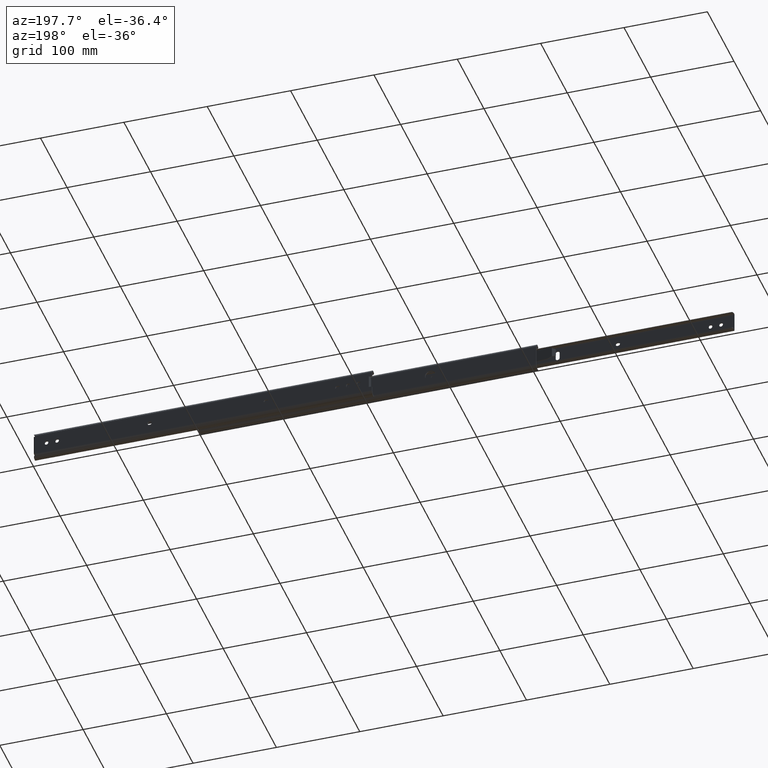
[diagram: clean part render]
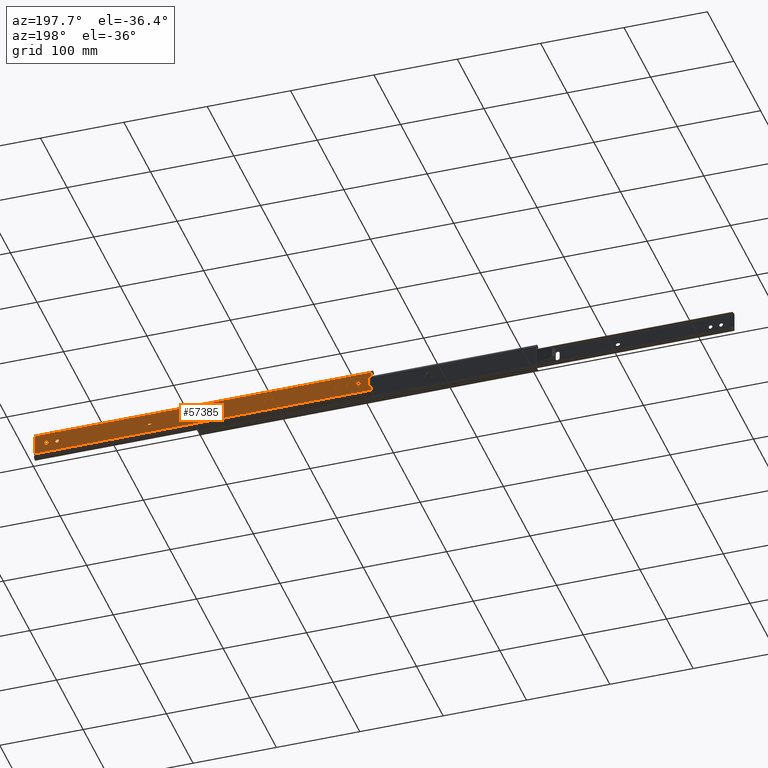
[diagram: same view with one face highlighted and labeled with its STEP entity id]
A machine part, auxiliary view. The second image highlights one B-rep face of the part: STEP entity #57385.
In plain terms, the highlighted face is a freeform B-spline surface patch.
Its self-contained STEP definition (entity closure, byte-faithful):
#54085=CARTESIAN_POINT('',(7.347638E-017,-0.399999999999978,387.850000000000020));
#54086=VERTEX_POINT('',#54085);
#54092=CARTESIAN_POINT('',(0.0,0.400000000000034,387.850000000000020));
#54093=VERTEX_POINT('',#54092);
#54094=CARTESIAN_POINT('',(7.347638E-017,-0.399999999999978,387.850000000000020));
#54095=CARTESIAN_POINT('',(0.0,0.400000000000034,387.850000000000020));
#54096=QUASI_UNIFORM_CURVE('',1,(#54094,#54095),.UNSPECIFIED.,.F.,.U.);
#54097=EDGE_CURVE('',#54086,#54093,#54096,.T.);
#54134=CARTESIAN_POINT('',(0.0,-0.399999999999977,392.350000000000020));
#54135=VERTEX_POINT('',#54134);
#54141=CARTESIAN_POINT('',(0.0,-0.399999999999977,392.350000000000020));
#54142=CARTESIAN_POINT('',(0.0,-2.649999999999978,392.350000000000020));
#54143=CARTESIAN_POINT('',(0.0,-2.649999999999977,390.100000000000020));
#54144=CARTESIAN_POINT('',(0.0,-2.649999999999978,387.850000000000080));
#54145=CARTESIAN_POINT('',(0.0,-0.399999999999977,387.850000000000020));
#54153=(BOUNDED_CURVE()B_SPLINE_CURVE(2,(#54141,#54142,#54143,#54144,#54145),.UNSPECIFIED.,.F.,.U.)B_SPLINE_CURVE_WITH_KNOTS((3,2,3),(0.0,0.500000000000000,1.0),.UNSPECIFIED.)CURVE()GEOMETRIC_REPRESENTATION_ITEM()RATIONAL_B_SPLINE_CURVE((1.0,0.707106781186547,1.0,0.707106781186547,1.0))REPRESENTATION_ITEM(''));
#54154=EDGE_CURVE('',#54135,#54086,#54153,.T.);
#54182=CARTESIAN_POINT('',(0.0,0.400000000000034,392.350000000000020));
#54183=VERTEX_POINT('',#54182);
#54189=CARTESIAN_POINT('',(0.0,0.400000000000034,392.350000000000020));
#54190=CARTESIAN_POINT('',(0.0,-0.399999999999977,392.350000000000020));
#54191=QUASI_UNIFORM_CURVE('',1,(#54189,#54190),.UNSPECIFIED.,.F.,.U.);
#54192=EDGE_CURVE('',#54183,#54135,#54191,.T.);
#54222=CARTESIAN_POINT('',(0.0,0.400000000000034,387.850000000000020));
#54223=CARTESIAN_POINT('',(0.0,2.650000000000034,387.850000000000080));
#54224=CARTESIAN_POINT('',(0.0,2.650000000000034,390.100000000000020));
#54225=CARTESIAN_POINT('',(0.0,2.650000000000034,392.350000000000020));
#54226=CARTESIAN_POINT('',(0.0,0.400000000000034,392.350000000000020));
#54234=(BOUNDED_CURVE()B_SPLINE_CURVE(2,(#54222,#54223,#54224,#54225,#54226),.UNSPECIFIED.,.F.,.U.)B_SPLINE_CURVE_WITH_KNOTS((3,2,3),(0.0,0.500000000000000,1.0),.UNSPECIFIED.)CURVE()GEOMETRIC_REPRESENTATION_ITEM()RATIONAL_B_SPLINE_CURVE((1.0,0.707106781186547,1.0,0.707106781186547,1.0))REPRESENTATION_ITEM(''));
#54235=EDGE_CURVE('',#54093,#54183,#54234,.T.);
#54263=CARTESIAN_POINT('',(7.347638E-017,-0.399999999999978,375.149999999999980));
#54264=VERTEX_POINT('',#54263);
#54270=CARTESIAN_POINT('',(0.0,0.400000000000034,375.149999999999980));
#54271=VERTEX_POINT('',#54270);
#54272=CARTESIAN_POINT('',(7.347638E-017,-0.399999999999978,375.149999999999980));
#54273=CARTESIAN_POINT('',(0.0,0.400000000000034,375.149999999999980));
#54274=QUASI_UNIFORM_CURVE('',1,(#54272,#54273),.UNSPECIFIED.,.F.,.U.);
#54275=EDGE_CURVE('',#54264,#54271,#54274,.T.);
#54312=CARTESIAN_POINT('',(0.0,-0.399999999999977,379.649999999999980));
#54313=VERTEX_POINT('',#54312);
#54319=CARTESIAN_POINT('',(0.0,-0.399999999999977,379.649999999999980));
#54320=CARTESIAN_POINT('',(0.0,-2.649999999999978,379.650000000000090));
#54321=CARTESIAN_POINT('',(0.0,-2.649999999999977,377.399999999999980));
#54322=CARTESIAN_POINT('',(0.0,-2.649999999999978,375.150000000000090));
#54323=CARTESIAN_POINT('',(0.0,-0.399999999999977,375.149999999999980));
#54331=(BOUNDED_CURVE()B_SPLINE_CURVE(2,(#54319,#54320,#54321,#54322,#54323),.UNSPECIFIED.,.F.,.U.)B_SPLINE_CURVE_WITH_KNOTS((3,2,3),(0.0,0.500000000000000,1.0),.UNSPECIFIED.)CURVE()GEOMETRIC_REPRESENTATION_ITEM()RATIONAL_B_SPLINE_CURVE((1.0,0.707106781186547,1.0,0.707106781186547,1.0))REPRESENTATION_ITEM(''));
#54332=EDGE_CURVE('',#54313,#54264,#54331,.T.);
#54360=CARTESIAN_POINT('',(0.0,0.400000000000034,379.649999999999980));
#54361=VERTEX_POINT('',#54360);
#54367=CARTESIAN_POINT('',(0.0,0.400000000000034,379.649999999999980));
#54368=CARTESIAN_POINT('',(0.0,-0.399999999999977,379.649999999999980));
#54369=QUASI_UNIFORM_CURVE('',1,(#54367,#54368),.UNSPECIFIED.,.F.,.U.);
#54370=EDGE_CURVE('',#54361,#54313,#54369,.T.);
#54400=CARTESIAN_POINT('',(0.0,0.400000000000034,375.149999999999980));
#54401=CARTESIAN_POINT('',(0.0,2.650000000000034,375.150000000000090));
#54402=CARTESIAN_POINT('',(0.0,2.650000000000034,377.399999999999980));
#54403=CARTESIAN_POINT('',(0.0,2.650000000000034,379.650000000000090));
#54404=CARTESIAN_POINT('',(0.0,0.400000000000034,379.649999999999980));
#54412=(BOUNDED_CURVE()B_SPLINE_CURVE(2,(#54400,#54401,#54402,#54403,#54404),.UNSPECIFIED.,.F.,.U.)B_SPLINE_CURVE_WITH_KNOTS((3,2,3),(0.0,0.500000000000000,1.0),.UNSPECIFIED.)CURVE()GEOMETRIC_REPRESENTATION_ITEM()RATIONAL_B_SPLINE_CURVE((1.0,0.707106781186547,1.0,0.707106781186547,1.0))REPRESENTATION_ITEM(''));
#54413=EDGE_CURVE('',#54271,#54361,#54412,.T.);
#54454=CARTESIAN_POINT('',(4.133046E-016,-2.250000000000055,364.300000000000010));
#54455=VERTEX_POINT('',#54454);
#54461=CARTESIAN_POINT('',(0.0,2.249999999999945,364.300000000000010));
#54462=VERTEX_POINT('',#54461);
#54463=CARTESIAN_POINT('',(0.0,-2.250000000000057,364.300000000000010));
#54464=CARTESIAN_POINT('',(0.0,-2.250000000000057,362.049999999999950));
#54465=CARTESIAN_POINT('',(0.0,-5.684342E-014,362.050000000000010));
#54466=CARTESIAN_POINT('',(0.0,2.249999999999944,362.049999999999950));
#54467=CARTESIAN_POINT('',(0.0,2.249999999999943,364.300000000000010));
#54475=(BOUNDED_CURVE()B_SPLINE_CURVE(2,(#54463,#54464,#54465,#54466,#54467),.UNSPECIFIED.,.F.,.U.)B_SPLINE_CURVE_WITH_KNOTS((3,2,3),(0.0,0.500000000000000,1.0),.UNSPECIFIED.)CURVE()GEOMETRIC_REPRESENTATION_ITEM()RATIONAL_B_SPLINE_CURVE((1.0,0.707106781186547,1.0,0.707106781186547,1.0))REPRESENTATION_ITEM(''));
#54476=EDGE_CURVE('',#54455,#54462,#54475,.T.);
#54516=CARTESIAN_POINT('',(0.0,2.249999999999945,365.100000000000020));
#54517=VERTEX_POINT('',#54516);
#54518=CARTESIAN_POINT('',(0.0,2.249999999999945,365.100000000000020));
#54519=CARTESIAN_POINT('',(0.0,2.249999999999945,364.300000000000010));
#54520=QUASI_UNIFORM_CURVE('',1,(#54518,#54519),.UNSPECIFIED.,.F.,.U.);
#54521=EDGE_CURVE('',#54517,#54462,#54520,.T.);
#54550=CARTESIAN_POINT('',(0.0,-2.250000000000055,365.100000000000020));
#54551=VERTEX_POINT('',#54550);
#54552=CARTESIAN_POINT('',(0.0,2.249999999999943,365.100000000000020));
#54553=CARTESIAN_POINT('',(0.0,2.249999999999944,367.349999999999970));
#54554=CARTESIAN_POINT('',(0.0,-5.684342E-014,367.350000000000020));
#54555=CARTESIAN_POINT('',(0.0,-2.250000000000057,367.349999999999970));
#54556=CARTESIAN_POINT('',(0.0,-2.250000000000057,365.100000000000020));
#54564=(BOUNDED_CURVE()B_SPLINE_CURVE(2,(#54552,#54553,#54554,#54555,#54556),.UNSPECIFIED.,.F.,.U.)B_SPLINE_CURVE_WITH_KNOTS((3,2,3),(0.0,0.500000000000000,1.0),.UNSPECIFIED.)CURVE()GEOMETRIC_REPRESENTATION_ITEM()RATIONAL_B_SPLINE_CURVE((1.0,0.707106781186547,1.0,0.707106781186547,1.0))REPRESENTATION_ITEM(''));
#54565=EDGE_CURVE('',#54517,#54551,#54564,.T.);
#54603=CARTESIAN_POINT('',(4.133046E-016,-2.250000000000055,364.300000000000010));
#54604=CARTESIAN_POINT('',(0.0,-2.250000000000055,365.100000000000020));
#54605=QUASI_UNIFORM_CURVE('',1,(#54603,#54604),.UNSPECIFIED.,.F.,.U.);
#54606=EDGE_CURVE('',#54455,#54551,#54605,.T.);
#54619=CARTESIAN_POINT('',(-4.133046E-016,2.249999999999975,278.600000000000020));
#54620=VERTEX_POINT('',#54619);
#54626=CARTESIAN_POINT('',(0.0,2.249999999999970,279.399999999999980));
#54627=VERTEX_POINT('',#54626);
#54628=CARTESIAN_POINT('',(-4.133046E-016,2.249999999999975,278.600000000000020));
#54629=CARTESIAN_POINT('',(0.0,2.249999999999970,279.399999999999980));
#54630=QUASI_UNIFORM_CURVE('',1,(#54628,#54629),.UNSPECIFIED.,.F.,.U.);
#54631=EDGE_CURVE('',#54620,#54627,#54630,.T.);
#54668=CARTESIAN_POINT('',(0.0,-2.249999999999970,278.600000000000020));
#54669=VERTEX_POINT('',#54668);
#54675=CARTESIAN_POINT('',(0.0,-2.250000000000028,278.600000000000020));
#54676=CARTESIAN_POINT('',(0.0,-2.250000000000029,276.350000000000020));
#54677=CARTESIAN_POINT('',(0.0,-2.842171E-014,276.350000000000020));
#54678=CARTESIAN_POINT('',(0.0,2.249999999999972,276.350000000000020));
#54679=CARTESIAN_POINT('',(0.0,2.249999999999971,278.600000000000020));
#54687=(BOUNDED_CURVE()B_SPLINE_CURVE(2,(#54675,#54676,#54677,#54678,#54679),.UNSPECIFIED.,.F.,.U.)B_SPLINE_CURVE_WITH_KNOTS((3,2,3),(0.0,0.500000000000000,1.0),.UNSPECIFIED.)CURVE()GEOMETRIC_REPRESENTATION_ITEM()RATIONAL_B_SPLINE_CURVE((1.0,0.707106781186547,1.0,0.707106781186547,1.0))REPRESENTATION_ITEM(''));
#54688=EDGE_CURVE('',#54669,#54620,#54687,.T.);
#54716=CARTESIAN_POINT('',(0.0,-2.249999999999970,279.399999999999980));
#54717=VERTEX_POINT('',#54716);
#54723=CARTESIAN_POINT('',(0.0,-2.249999999999970,279.399999999999980));
#54724=CARTESIAN_POINT('',(0.0,-2.249999999999970,278.600000000000020));
#54725=QUASI_UNIFORM_CURVE('',1,(#54723,#54724),.UNSPECIFIED.,.F.,.U.);
#54726=EDGE_CURVE('',#54717,#54669,#54725,.T.);
#54756=CARTESIAN_POINT('',(0.0,2.249999999999971,279.399999999999980));
#54757=CARTESIAN_POINT('',(0.0,2.249999999999972,281.650000000000030));
#54758=CARTESIAN_POINT('',(0.0,-2.842171E-014,281.649999999999980));
#54759=CARTESIAN_POINT('',(0.0,-2.250000000000029,281.650000000000030));
#54760=CARTESIAN_POINT('',(0.0,-2.250000000000028,279.399999999999980));
#54768=(BOUNDED_CURVE()B_SPLINE_CURVE(2,(#54756,#54757,#54758,#54759,#54760),.UNSPECIFIED.,.F.,.U.)B_SPLINE_CURVE_WITH_KNOTS((3,2,3),(0.0,0.500000000000000,1.0),.UNSPECIFIED.)CURVE()GEOMETRIC_REPRESENTATION_ITEM()RATIONAL_B_SPLINE_CURVE((1.0,0.707106781186547,1.0,0.707106781186547,1.0))REPRESENTATION_ITEM(''));
#54769=EDGE_CURVE('',#54627,#54717,#54768,.T.);
#54797=CARTESIAN_POINT('',(-4.133046E-016,2.249999999999975,138.900000000000010));
#54798=VERTEX_POINT('',#54797);
#54804=CARTESIAN_POINT('',(0.0,2.249999999999970,139.699999999999990));
#54805=VERTEX_POINT('',#54804);
#54806=CARTESIAN_POINT('',(-4.133046E-016,2.249999999999975,138.900000000000010));
#54807=CARTESIAN_POINT('',(0.0,2.249999999999970,139.699999999999990));
#54808=QUASI_UNIFORM_CURVE('',1,(#54806,#54807),.UNSPECIFIED.,.F.,.U.);
#54809=EDGE_CURVE('',#54798,#54805,#54808,.T.);
#54846=CARTESIAN_POINT('',(0.0,-2.249999999999970,138.900000000000010));
#54847=VERTEX_POINT('',#54846);
#54853=CARTESIAN_POINT('',(0.0,-2.250000000000028,138.900000000000010));
#54854=CARTESIAN_POINT('',(0.0,-2.250000000000029,136.650000000000010));
#54855=CARTESIAN_POINT('',(0.0,-2.842171E-014,136.650000000000010));
#54856=CARTESIAN_POINT('',(0.0,2.249999999999972,136.650000000000010));
#54857=CARTESIAN_POINT('',(0.0,2.249999999999971,138.900000000000010));
#54865=(BOUNDED_CURVE()B_SPLINE_CURVE(2,(#54853,#54854,#54855,#54856,#54857),.UNSPECIFIED.,.F.,.U.)B_SPLINE_CURVE_WITH_KNOTS((3,2,3),(0.0,0.500000000000000,1.0),.UNSPECIFIED.)CURVE()GEOMETRIC_REPRESENTATION_ITEM()RATIONAL_B_SPLINE_CURVE((1.0,0.707106781186547,1.0,0.707106781186547,1.0))REPRESENTATION_ITEM(''));
#54866=EDGE_CURVE('',#54847,#54798,#54865,.T.);
#54894=CARTESIAN_POINT('',(0.0,-2.249999999999970,139.699999999999990));
#54895=VERTEX_POINT('',#54894);
#54901=CARTESIAN_POINT('',(0.0,-2.249999999999970,139.699999999999990));
#54902=CARTESIAN_POINT('',(0.0,-2.249999999999970,138.900000000000010));
#54903=QUASI_UNIFORM_CURVE('',1,(#54901,#54902),.UNSPECIFIED.,.F.,.U.);
#54904=EDGE_CURVE('',#54895,#54847,#54903,.T.);
#54934=CARTESIAN_POINT('',(0.0,2.249999999999971,139.699999999999990));
#54935=CARTESIAN_POINT('',(0.0,2.249999999999972,141.949999999999990));
#54936=CARTESIAN_POINT('',(0.0,-2.842171E-014,141.949999999999990));
#54937=CARTESIAN_POINT('',(0.0,-2.250000000000029,141.949999999999990));
#54938=CARTESIAN_POINT('',(0.0,-2.250000000000028,139.699999999999990));
#54946=(BOUNDED_CURVE()B_SPLINE_CURVE(2,(#54934,#54935,#54936,#54937,#54938),.UNSPECIFIED.,.F.,.U.)B_SPLINE_CURVE_WITH_KNOTS((3,2,3),(0.0,0.500000000000000,1.0),.UNSPECIFIED.)CURVE()GEOMETRIC_REPRESENTATION_ITEM()RATIONAL_B_SPLINE_CURVE((1.0,0.707106781186547,1.0,0.707106781186547,1.0))REPRESENTATION_ITEM(''));
#54947=EDGE_CURVE('',#54805,#54895,#54946,.T.);
#54988=CARTESIAN_POINT('',(-1.991581E-032,0.400000000000091,25.949999999999999));
#54989=VERTEX_POINT('',#54988);
#54995=CARTESIAN_POINT('',(0.0,0.400000000000091,30.449999999999999));
#54996=VERTEX_POINT('',#54995);
#54997=CARTESIAN_POINT('',(0.0,0.400000000000091,25.949999999999999));
#54998=CARTESIAN_POINT('',(0.0,2.650000000000091,25.950000000000003));
#54999=CARTESIAN_POINT('',(0.0,2.650000000000091,28.199999999999999));
#55000=CARTESIAN_POINT('',(0.0,2.650000000000091,30.449999999999999));
#55001=CARTESIAN_POINT('',(0.0,0.400000000000091,30.449999999999999));
#55009=(BOUNDED_CURVE()B_SPLINE_CURVE(2,(#54997,#54998,#54999,#55000,#55001),.UNSPECIFIED.,.F.,.U.)B_SPLINE_CURVE_WITH_KNOTS((3,2,3),(0.0,0.500000000000000,1.0),.UNSPECIFIED.)CURVE()GEOMETRIC_REPRESENTATION_ITEM()RATIONAL_B_SPLINE_CURVE((1.0,0.707106781186547,1.0,0.707106781186547,1.0))REPRESENTATION_ITEM(''));
#55010=EDGE_CURVE('',#54989,#54996,#55009,.T.);
#55050=CARTESIAN_POINT('',(0.0,-0.399999999999920,30.449999999999999));
#55051=VERTEX_POINT('',#55050);
#55052=CARTESIAN_POINT('',(0.0,-0.399999999999920,30.449999999999999));
#55053=CARTESIAN_POINT('',(0.0,0.400000000000091,30.449999999999999));
#55054=QUASI_UNIFORM_CURVE('',1,(#55052,#55053),.UNSPECIFIED.,.F.,.U.);
#55055=EDGE_CURVE('',#55051,#54996,#55054,.T.);
#55084=CARTESIAN_POINT('',(0.0,-0.399999999999921,25.949999999999999));
#55085=VERTEX_POINT('',#55084);
#55086=CARTESIAN_POINT('',(0.0,-0.399999999999920,30.449999999999999));
#55087=CARTESIAN_POINT('',(0.0,-2.649999999999920,30.449999999999999));
#55088=CARTESIAN_POINT('',(0.0,-2.649999999999920,28.199999999999999));
#55089=CARTESIAN_POINT('',(0.0,-2.649999999999920,25.950000000000003));
#55090=CARTESIAN_POINT('',(0.0,-0.399999999999920,25.949999999999999));
#55098=(BOUNDED_CURVE()B_SPLINE_CURVE(2,(#55086,#55087,#55088,#55089,#55090),.UNSPECIFIED.,.F.,.U.)B_SPLINE_CURVE_WITH_KNOTS((3,2,3),(0.0,0.500000000000000,1.0),.UNSPECIFIED.)CURVE()GEOMETRIC_REPRESENTATION_ITEM()RATIONAL_B_SPLINE_CURVE((1.0,0.707106781186547,1.0,0.707106781186547,1.0))REPRESENTATION_ITEM(''));
#55099=EDGE_CURVE('',#55051,#55085,#55098,.T.);
#55137=CARTESIAN_POINT('',(-1.991581E-032,0.400000000000091,25.949999999999999));
#55138=CARTESIAN_POINT('',(0.0,-0.399999999999921,25.949999999999999));
#55139=QUASI_UNIFORM_CURVE('',1,(#55137,#55138),.UNSPECIFIED.,.F.,.U.);
#55140=EDGE_CURVE('',#54989,#55085,#55139,.T.);
#55166=CARTESIAN_POINT('',(-1.991581E-032,0.400000000000091,13.250000000000000));
#55167=VERTEX_POINT('',#55166);
#55173=CARTESIAN_POINT('',(0.0,0.400000000000091,17.750000000000000));
#55174=VERTEX_POINT('',#55173);
#55175=CARTESIAN_POINT('',(0.0,0.400000000000091,13.250000000000000));
#55176=CARTESIAN_POINT('',(0.0,2.650000000000091,13.250000000000004));
#55177=CARTESIAN_POINT('',(0.0,2.650000000000091,15.500000000000000));
#55178=CARTESIAN_POINT('',(0.0,2.650000000000091,17.750000000000004));
#55179=CARTESIAN_POINT('',(0.0,0.400000000000091,17.750000000000000));
#55187=(BOUNDED_CURVE()B_SPLINE_CURVE(2,(#55175,#55176,#55177,#55178,#55179),.UNSPECIFIED.,.F.,.U.)B_SPLINE_CURVE_WITH_KNOTS((3,2,3),(0.0,0.500000000000000,1.0),.UNSPECIFIED.)CURVE()GEOMETRIC_REPRESENTATION_ITEM()RATIONAL_B_SPLINE_CURVE((1.0,0.707106781186547,1.0,0.707106781186547,1.0))REPRESENTATION_ITEM(''));
#55188=EDGE_CURVE('',#55167,#55174,#55187,.T.);
#55228=CARTESIAN_POINT('',(0.0,-0.399999999999920,17.750000000000000));
#55229=VERTEX_POINT('',#55228);
#55230=CARTESIAN_POINT('',(0.0,-0.399999999999920,17.750000000000000));
#55231=CARTESIAN_POINT('',(0.0,0.400000000000091,17.750000000000000));
#55232=QUASI_UNIFORM_CURVE('',1,(#55230,#55231),.UNSPECIFIED.,.F.,.U.);
#55233=EDGE_CURVE('',#55229,#55174,#55232,.T.);
#55262=CARTESIAN_POINT('',(0.0,-0.399999999999921,13.250000000000000));
#55263=VERTEX_POINT('',#55262);
#55264=CARTESIAN_POINT('',(0.0,-0.399999999999920,17.750000000000000));
#55265=CARTESIAN_POINT('',(0.0,-2.649999999999920,17.750000000000004));
#55266=CARTESIAN_POINT('',(0.0,-2.649999999999920,15.500000000000000));
#55267=CARTESIAN_POINT('',(0.0,-2.649999999999920,13.250000000000004));
#55268=CARTESIAN_POINT('',(0.0,-0.399999999999920,13.250000000000000));
#55276=(BOUNDED_CURVE()B_SPLINE_CURVE(2,(#55264,#55265,#55266,#55267,#55268),.UNSPECIFIED.,.F.,.U.)B_SPLINE_CURVE_WITH_KNOTS((3,2,3),(0.0,0.500000000000000,1.0),.UNSPECIFIED.)CURVE()GEOMETRIC_REPRESENTATION_ITEM()RATIONAL_B_SPLINE_CURVE((1.0,0.707106781186547,1.0,0.707106781186547,1.0))REPRESENTATION_ITEM(''));
#55277=EDGE_CURVE('',#55229,#55263,#55276,.T.);
#55315=CARTESIAN_POINT('',(-1.991581E-032,0.400000000000091,13.250000000000000));
#55316=CARTESIAN_POINT('',(0.0,-0.399999999999921,13.250000000000000));
#55317=QUASI_UNIFORM_CURVE('',1,(#55315,#55316),.UNSPECIFIED.,.F.,.U.);
#55318=EDGE_CURVE('',#55167,#55263,#55317,.T.);
#55712=CARTESIAN_POINT('',(-2.775558E-014,7.500000000000000,401.899999999999980));
#55713=VERTEX_POINT('',#55712);
#55734=CARTESIAN_POINT('',(1.377682E-015,-7.500000000000170,401.899999999999980));
#55735=VERTEX_POINT('',#55734);
#55751=CARTESIAN_POINT('',(-2.775558E-014,7.500000000000000,401.899999999999980));
#55752=CARTESIAN_POINT('',(1.377682E-015,-7.500000000000170,401.899999999999980));
#55753=QUASI_UNIFORM_CURVE('',1,(#55751,#55752),.UNSPECIFIED.,.F.,.U.);
#55754=EDGE_CURVE('',#55713,#55735,#55753,.T.);
#55773=CARTESIAN_POINT('',(0.0,11.500000000000000,1.600000000000000));
#55774=VERTEX_POINT('',#55773);
#55790=CARTESIAN_POINT('',(0.0,-11.500000000000000,1.600000000000030));
#55791=VERTEX_POINT('',#55790);
#55792=CARTESIAN_POINT('',(0.0,-11.500000000000000,1.600000000000030));
#55793=CARTESIAN_POINT('',(0.0,11.500000000000000,1.600000000000000));
#55794=QUASI_UNIFORM_CURVE('',1,(#55792,#55793),.UNSPECIFIED.,.F.,.U.);
#55795=EDGE_CURVE('',#55791,#55774,#55794,.T.);
#56111=CARTESIAN_POINT('',(-1.377682E-015,7.500000000000000,406.0));
#56112=VERTEX_POINT('',#56111);
#56113=CARTESIAN_POINT('',(-1.377682E-015,7.500000000000000,406.0));
#56114=CARTESIAN_POINT('',(-2.775558E-014,7.500000000000000,401.899999999999980));
#56115=QUASI_UNIFORM_CURVE('',1,(#56113,#56114),.UNSPECIFIED.,.F.,.U.);
#56116=EDGE_CURVE('',#56112,#55713,#56115,.T.);
#56131=CARTESIAN_POINT('',(0.0,-7.500000000000170,406.0));
#56132=VERTEX_POINT('',#56131);
#56140=CARTESIAN_POINT('',(1.377682E-015,-7.500000000000170,401.899999999999980));
#56141=CARTESIAN_POINT('',(0.0,-7.500000000000170,406.0));
#56142=QUASI_UNIFORM_CURVE('',1,(#56140,#56141),.UNSPECIFIED.,.F.,.U.);
#56143=EDGE_CURVE('',#55735,#56132,#56142,.T.);
#56218=CARTESIAN_POINT('',(0.0,-12.578915999999939,2.360134746260215));
#56219=VERTEX_POINT('',#56218);
#56220=CARTESIAN_POINT('',(0.0,-11.500000000000000,1.600000000000030));
#56221=CARTESIAN_POINT('',(0.0,-11.499999999999993,2.018731150446806));
#56222=CARTESIAN_POINT('',(0.0,-11.842306945716681,2.259898584543121));
#56223=CARTESIAN_POINT('',(0.0,-12.184613891433356,2.501066018639437));
#56224=CARTESIAN_POINT('',(0.0,-12.578915999999939,2.360134746260213));
#56232=(BOUNDED_CURVE()B_SPLINE_CURVE(2,(#56220,#56221,#56222,#56223,#56224),.UNSPECIFIED.,.F.,.U.)B_SPLINE_CURVE_WITH_KNOTS((3,2,3),(0.0,0.500000000000000,1.0),.UNSPECIFIED.)CURVE()GEOMETRIC_REPRESENTATION_ITEM()RATIONAL_B_SPLINE_CURVE((1.0,0.887679040060806,1.0,0.887679040060806,1.0))REPRESENTATION_ITEM(''));
#56233=EDGE_CURVE('',#55791,#56219,#56232,.T.);
#56663=CARTESIAN_POINT('',(0.0,12.578916000000040,2.360134746260160));
#56664=VERTEX_POINT('',#56663);
#56665=CARTESIAN_POINT('',(0.0,12.578916000000040,2.360134746260148));
#56666=CARTESIAN_POINT('',(0.0,12.184613891433445,2.501066018639433));
#56667=CARTESIAN_POINT('',(0.0,11.842306945716720,2.259898584543122));
#56668=CARTESIAN_POINT('',(0.0,11.500000000000004,2.018731150446809));
#56669=CARTESIAN_POINT('',(0.0,11.500000000000000,1.600000000000000));
#56677=(BOUNDED_CURVE()B_SPLINE_CURVE(2,(#56665,#56666,#56667,#56668,#56669),.UNSPECIFIED.,.F.,.U.)B_SPLINE_CURVE_WITH_KNOTS((3,2,3),(0.0,0.500000000000000,1.0),.UNSPECIFIED.)CURVE()GEOMETRIC_REPRESENTATION_ITEM()RATIONAL_B_SPLINE_CURVE((1.0,0.887679040060791,1.0,0.887679040060791,1.0))REPRESENTATION_ITEM(''));
#56678=EDGE_CURVE('',#56664,#55774,#56677,.T.);
#56782=CARTESIAN_POINT('',(-4.751755E-014,12.578916000000040,406.0));
#56783=VERTEX_POINT('',#56782);
#56784=CARTESIAN_POINT('',(-4.751755E-014,12.578916000000040,406.0));
#56785=CARTESIAN_POINT('',(-1.377682E-015,7.500000000000000,406.0));
#56786=QUASI_UNIFORM_CURVE('',1,(#56784,#56785),.UNSPECIFIED.,.F.,.U.);
#56787=EDGE_CURVE('',#56783,#56112,#56786,.T.);
#57080=CARTESIAN_POINT('',(0.0,12.578916000000040,2.360134746260160));
#57081=CARTESIAN_POINT('',(-4.751755E-014,12.578916000000040,406.0));
#57082=QUASI_UNIFORM_CURVE('',1,(#57080,#57081),.UNSPECIFIED.,.F.,.U.);
#57083=EDGE_CURVE('',#56664,#56783,#57082,.T.);
#57249=CARTESIAN_POINT('',(2.310633E-015,-12.578915999999939,406.0));
#57250=VERTEX_POINT('',#57249);
#57251=CARTESIAN_POINT('',(0.0,-12.578915999999939,2.360134746260215));
#57252=CARTESIAN_POINT('',(2.310633E-015,-12.578915999999939,406.0));
#57253=QUASI_UNIFORM_CURVE('',1,(#57251,#57252),.UNSPECIFIED.,.F.,.U.);
#57254=EDGE_CURVE('',#56219,#57250,#57253,.T.);
#57310=CARTESIAN_POINT('',(0.0,-7.500000000000170,406.0));
#57311=CARTESIAN_POINT('',(2.310633E-015,-12.578915999999939,406.0));
#57312=QUASI_UNIFORM_CURVE('',1,(#57310,#57311),.UNSPECIFIED.,.F.,.U.);
#57313=EDGE_CURVE('',#56132,#57250,#57312,.T.);
#57326=CARTESIAN_POINT('',(-2.310633E-015,13.835549333594111,-18.599779216194371));
#57327=CARTESIAN_POINT('',(-2.310633E-015,-13.835548433879820,-18.599779216194371));
#57328=CARTESIAN_POINT('',(-2.310633E-015,13.835549333594111,426.199790063047710));
#57329=CARTESIAN_POINT('',(-2.310633E-015,-13.835548433879820,426.199790063047710));
#57330=B_SPLINE_SURFACE_WITH_KNOTS('',1,1,((#57326,#57328),(#57327,#57329)),.UNSPECIFIED.,.F.,.F.,.U.,(2,2),(2,2),(0.0,27.671097767473931),(0.0,444.799569279242010),.UNSPECIFIED.);
#57331=ORIENTED_EDGE('',*,*,#56233,.F.);
#57332=ORIENTED_EDGE('',*,*,#55795,.T.);
#57333=ORIENTED_EDGE('',*,*,#56678,.F.);
#57334=ORIENTED_EDGE('',*,*,#57083,.T.);
#57335=ORIENTED_EDGE('',*,*,#56787,.T.);
#57336=ORIENTED_EDGE('',*,*,#56116,.T.);
#57337=ORIENTED_EDGE('',*,*,#55754,.T.);
#57338=ORIENTED_EDGE('',*,*,#56143,.T.);
#57339=ORIENTED_EDGE('',*,*,#57313,.T.);
#57340=ORIENTED_EDGE('',*,*,#57254,.F.);
#57341=EDGE_LOOP('',(#57331,#57332,#57333,#57334,#57335,#57336,#57337,#57338,#57339,#57340));
#57342=FACE_OUTER_BOUND('',#57341,.T.);
#57343=ORIENTED_EDGE('',*,*,#54370,.F.);
#57344=ORIENTED_EDGE('',*,*,#54413,.F.);
#57345=ORIENTED_EDGE('',*,*,#54275,.F.);
#57346=ORIENTED_EDGE('',*,*,#54332,.F.);
#57347=EDGE_LOOP('',(#57343,#57344,#57345,#57346));
#57348=FACE_BOUND('',#57347,.T.);
#57349=ORIENTED_EDGE('',*,*,#55140,.T.);
#57350=ORIENTED_EDGE('',*,*,#55099,.F.);
#57351=ORIENTED_EDGE('',*,*,#55055,.T.);
#57352=ORIENTED_EDGE('',*,*,#55010,.F.);
#57353=EDGE_LOOP('',(#57349,#57350,#57351,#57352));
#57354=FACE_BOUND('',#57353,.T.);
#57355=ORIENTED_EDGE('',*,*,#54192,.F.);
#57356=ORIENTED_EDGE('',*,*,#54235,.F.);
#57357=ORIENTED_EDGE('',*,*,#54097,.F.);
#57358=ORIENTED_EDGE('',*,*,#54154,.F.);
#57359=EDGE_LOOP('',(#57355,#57356,#57357,#57358));
#57360=FACE_BOUND('',#57359,.T.);
#57361=ORIENTED_EDGE('',*,*,#55318,.T.);
#57362=ORIENTED_EDGE('',*,*,#55277,.F.);
#57363=ORIENTED_EDGE('',*,*,#55233,.T.);
#57364=ORIENTED_EDGE('',*,*,#55188,.F.);
#57365=EDGE_LOOP('',(#57361,#57362,#57363,#57364));
#57366=FACE_BOUND('',#57365,.T.);
#57367=ORIENTED_EDGE('',*,*,#54904,.F.);
#57368=ORIENTED_EDGE('',*,*,#54947,.F.);
#57369=ORIENTED_EDGE('',*,*,#54809,.F.);
#57370=ORIENTED_EDGE('',*,*,#54866,.F.);
#57371=EDGE_LOOP('',(#57367,#57368,#57369,#57370));
#57372=FACE_BOUND('',#57371,.T.);
#57373=ORIENTED_EDGE('',*,*,#54726,.F.);
#57374=ORIENTED_EDGE('',*,*,#54769,.F.);
#57375=ORIENTED_EDGE('',*,*,#54631,.F.);
#57376=ORIENTED_EDGE('',*,*,#54688,.F.);
#57377=EDGE_LOOP('',(#57373,#57374,#57375,#57376));
#57378=FACE_BOUND('',#57377,.T.);
#57379=ORIENTED_EDGE('',*,*,#54606,.T.);
#57380=ORIENTED_EDGE('',*,*,#54565,.F.);
#57381=ORIENTED_EDGE('',*,*,#54521,.T.);
#57382=ORIENTED_EDGE('',*,*,#54476,.F.);
#57383=EDGE_LOOP('',(#57379,#57380,#57381,#57382));
#57384=FACE_BOUND('',#57383,.T.);
#57385=ADVANCED_FACE('',(#57342,#57348,#57354,#57360,#57366,#57372,#57378,#57384),#57330,.F.);